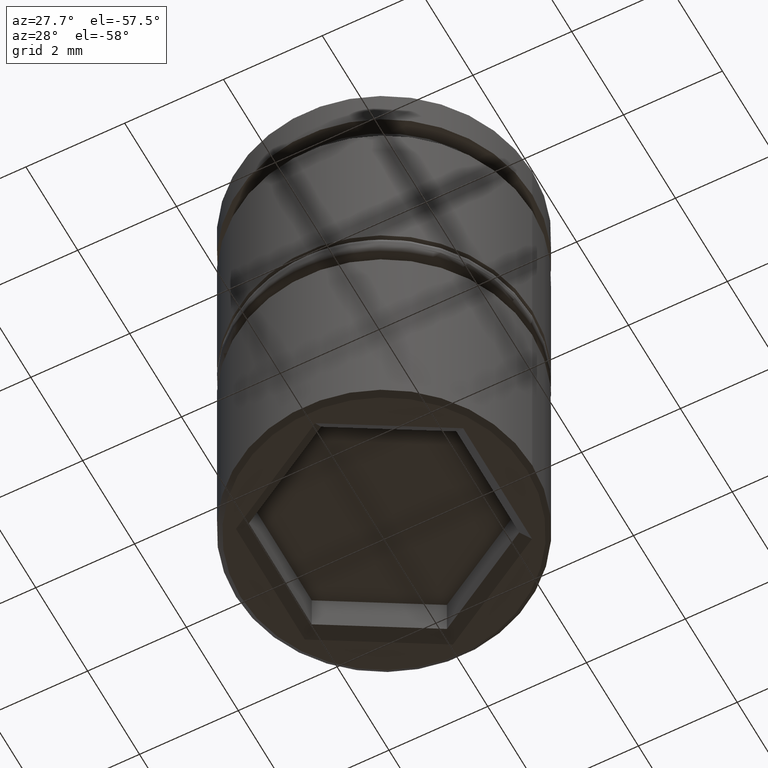
[diagram: clean part render]
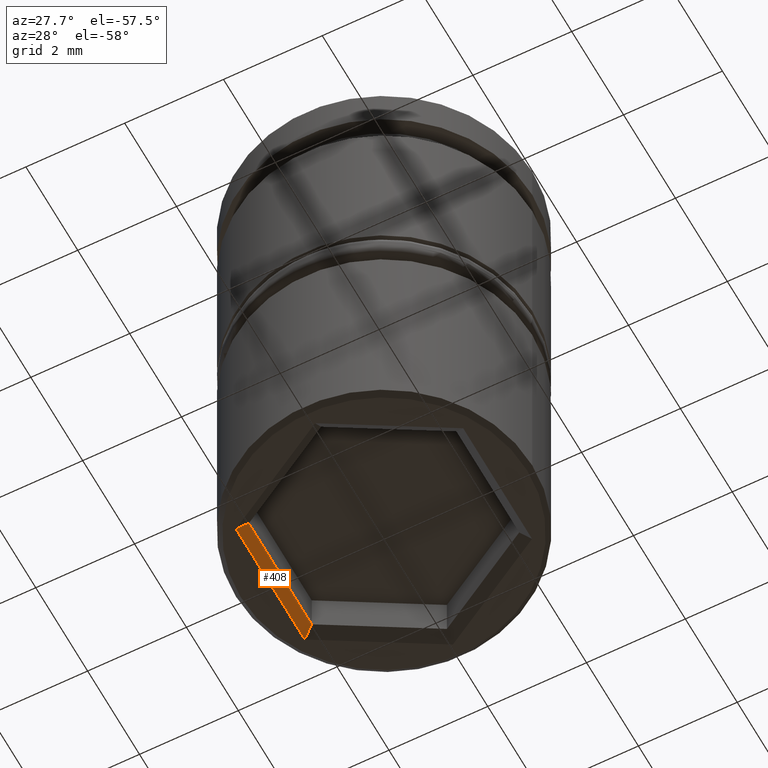
[diagram: same view with one face highlighted and labeled with its STEP entity id]
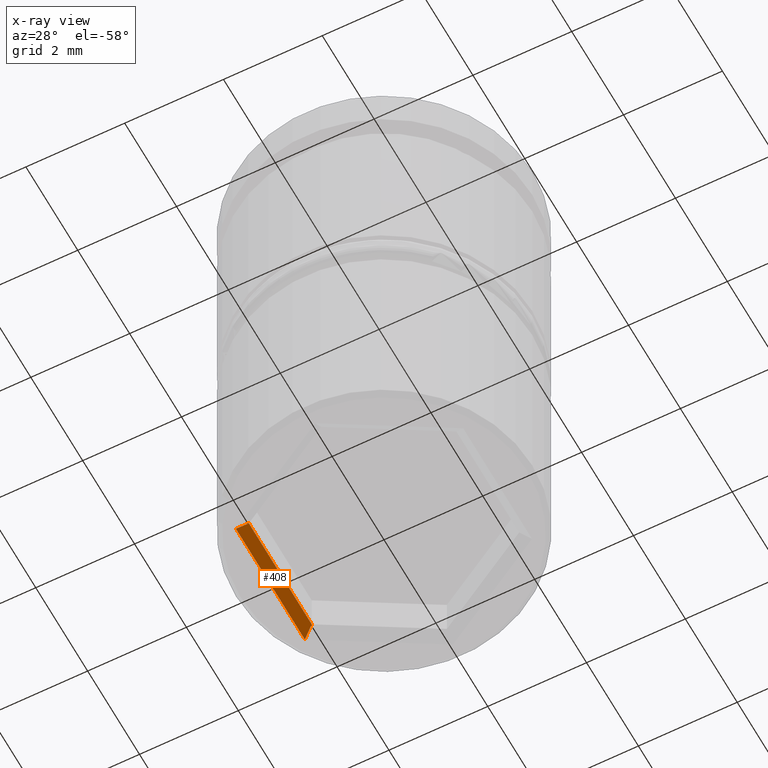
[diagram: x-ray of the same camera — body ghosted, the highlighted face saturated]
A machine part, auxiliary view. The second image highlights one B-rep face of the part: STEP entity #408.
The next image is the same camera in x-ray: the body ghosted, the highlighted face saturated — about 0% of this face is hidden behind the body in this view.
In plain terms, the highlighted planar face has unit normal (0.7071, 0, -0.7071).
Its self-contained STEP definition (entity closure, byte-faithful):
#22 = CARTESIAN_POINT ( 'NONE',  ( -1.500000000000005551, 0.8660254037844419273, -9.199999999999995737 ) ) ;
#41 = EDGE_CURVE ( 'NONE', #358, #119, #577, .T. ) ;
#59 = EDGE_CURVE ( 'NONE', #358, #791, #489, .T. ) ;
#107 = CARTESIAN_POINT ( 'NONE',  ( -1.500000000000009326, -0.8660254037844408170, -9.199999999999999289 ) ) ;
#119 = VERTEX_POINT ( 'NONE', #383 ) ;
#123 = AXIS2_PLACEMENT_3D ( 'NONE', #318, #687, #1041 ) ;
#131 = FACE_OUTER_BOUND ( 'NONE', #746, .T. ) ;
#139 = VECTOR ( 'NONE', #679, 1000.000000000000000 ) ;
#229 = CARTESIAN_POINT ( 'NONE',  ( -2.300000000000001599, 1.327905619136140469, -10.00000000000000000 ) ) ;
#235 = VECTOR ( 'NONE', #389, 1000.000000000000000 ) ;
#309 = CARTESIAN_POINT ( 'NONE',  ( -2.100000000000000977, 1.212435565298214835, -9.799999999999997158 ) ) ;
#318 = CARTESIAN_POINT ( 'NONE',  ( -2.100000000000000977, -1.212435565298214390, -9.799999999999997158 ) ) ;
#358 = VERTEX_POINT ( 'NONE', #229 ) ;
#383 = CARTESIAN_POINT ( 'NONE',  ( -2.300000000000001599, -1.327905619136141135, -10.00000000000000000 ) ) ;
#389 = DIRECTION ( 'NONE',  ( 0.6546536707079739781, 0.3779644730092285854, 0.6546536707079794182 ) ) ;
#408 = ADVANCED_FACE ( 'NONE', ( #131 ), #417, .T. ) ;
#417 = PLANE ( 'NONE',  #123 ) ;
#460 = VECTOR ( 'NONE', #1032, 1000.000000000000000 ) ;
#489 = LINE ( 'NONE', #22, #1016 ) ;
#507 = CARTESIAN_POINT ( 'NONE',  ( -2.100000000000000977, 1.212435565298214835, -9.799999999999997158 ) ) ;
#577 = LINE ( 'NONE', #744, #139 ) ;
#679 = DIRECTION ( 'NONE',  ( 0.000000000000000000, -1.000000000000000000, 0.000000000000000000 ) ) ;
#687 = DIRECTION ( 'NONE',  ( 0.7071067811865505703, 0.000000000000000000, -0.7071067811865444641 ) ) ;
#710 = ORIENTED_EDGE ( 'NONE', *, *, #41, .F. ) ;
#717 = EDGE_CURVE ( 'NONE', #1073, #791, #1022, .T. ) ;
#744 = CARTESIAN_POINT ( 'NONE',  ( -2.300000000000001599, -1.212435565298214390, -10.00000000000000000 ) ) ;
#746 = EDGE_LOOP ( 'NONE', ( #1158, #1004, #896, #710 ) ) ;
#791 = VERTEX_POINT ( 'NONE', #507 ) ;
#841 = LINE ( 'NONE', #107, #235 ) ;
#884 = CARTESIAN_POINT ( 'NONE',  ( -2.100000000000000977, -1.212435565298214390, -9.799999999999997158 ) ) ;
#896 = ORIENTED_EDGE ( 'NONE', *, *, #992, .F. ) ;
#992 = EDGE_CURVE ( 'NONE', #119, #1073, #841, .T. ) ;
#1004 = ORIENTED_EDGE ( 'NONE', *, *, #717, .F. ) ;
#1016 = VECTOR ( 'NONE', #1105, 1000.000000000000114 ) ;
#1022 = LINE ( 'NONE', #309, #460 ) ;
#1032 = DIRECTION ( 'NONE',  ( 0.000000000000000000, 1.000000000000000000, 0.000000000000000000 ) ) ;
#1041 = DIRECTION ( 'NONE',  ( 0.000000000000000000, -1.000000000000000000, 0.000000000000000000 ) ) ;
#1073 = VERTEX_POINT ( 'NONE', #884 ) ;
#1105 = DIRECTION ( 'NONE',  ( 0.6546536707079747552, -0.3779644730092257543, 0.6546536707079803064 ) ) ;
#1158 = ORIENTED_EDGE ( 'NONE', *, *, #59, .T. ) ;